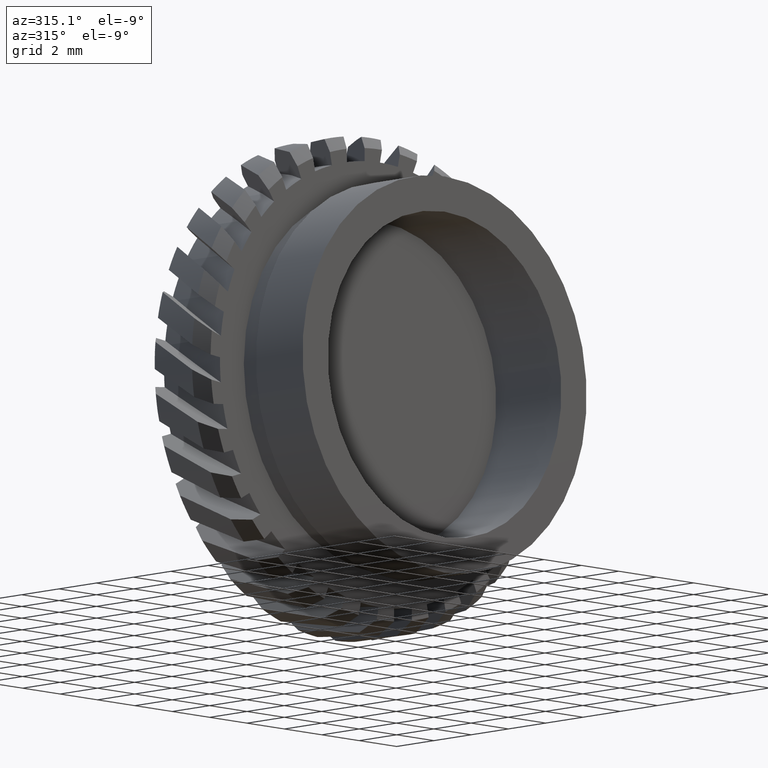
[diagram: clean part render]
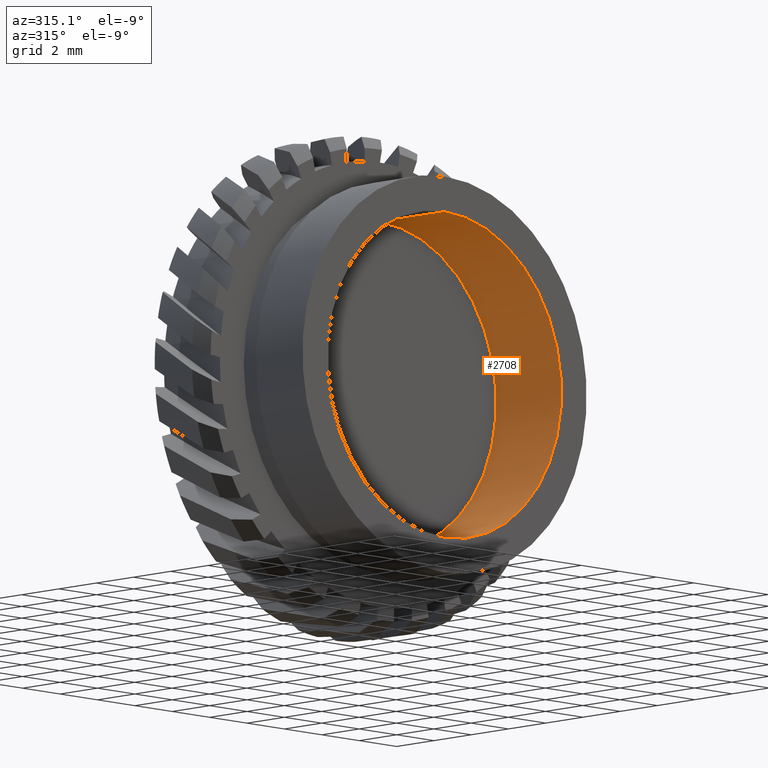
[diagram: same view with one face highlighted and labeled with its STEP entity id]
A machine part, auxiliary view. The second image highlights one B-rep face of the part: STEP entity #2708.
In plain terms, the highlighted cylindrical surface (partial cylindrical patch) has radius 6.25 mm, axis along (-0, 1, -0).
Its self-contained STEP definition (entity closure, byte-faithful):
#140 = DIRECTION ( 'NONE',  ( -0.0000000000000000000, 1.000000000000000000, -0.0000000000000000000 ) ) ;
#325 = CARTESIAN_POINT ( 'NONE',  ( 0.0000000000000000000, 15.37125740523061900, 0.0000000000000000000 ) ) ;
#901 = VECTOR ( 'NONE', #7476, 1000.000000000000000 ) ;
#956 = FACE_OUTER_BOUND ( 'NONE', #5641, .T. ) ;
#982 = CARTESIAN_POINT ( 'NONE',  ( 0.0000000000000000000, 18.87125740523061500, 6.250000000000005300 ) ) ;
#1073 = AXIS2_PLACEMENT_3D ( 'NONE', #2399, #4253, #1817 ) ;
#1802 = CARTESIAN_POINT ( 'NONE',  ( 0.0000000000000000000, 66.62876213592232900, 6.250000000000005300 ) ) ;
#1817 = DIRECTION ( 'NONE',  ( 0.0000000000000000000, 0.0000000000000000000, 1.000000000000000000 ) ) ;
#1906 = CIRCLE ( 'NONE', #4215, 6.250000000000005300 ) ;
#1965 = ORIENTED_EDGE ( 'NONE', *, *, #3093, .F. ) ;
#2399 = CARTESIAN_POINT ( 'NONE',  ( 0.0000000000000000000, 66.62876213592232900, 0.0000000000000000000 ) ) ;
#2582 = VECTOR ( 'NONE', #2960, 1000.000000000000000 ) ;
#2708 = ADVANCED_FACE ( 'NONE', ( #956 ), #3347, .F. ) ;
#2960 = DIRECTION ( 'NONE',  ( -0.0000000000000000000, 1.000000000000000000, -0.0000000000000000000 ) ) ;
#2996 = LINE ( 'NONE', #3826, #901 ) ;
#3093 = EDGE_CURVE ( 'NONE', #3836, #3397, #1906, .T. ) ;
#3347 = CYLINDRICAL_SURFACE ( 'NONE', #1073, 6.250000000000005300 ) ;
#3397 = VERTEX_POINT ( 'NONE', #5530 ) ;
#3526 = VERTEX_POINT ( 'NONE', #5683 ) ;
#3735 = DIRECTION ( 'NONE',  ( 0.0000000000000000000, 0.0000000000000000000, 1.000000000000000000 ) ) ;
#3769 = EDGE_CURVE ( 'NONE', #3836, #5391, #4654, .T. ) ;
#3826 = CARTESIAN_POINT ( 'NONE',  ( 7.654042494670964500E-016, 66.62876213592232900, -6.250000000000005300 ) ) ;
#3836 = VERTEX_POINT ( 'NONE', #4807 ) ;
#3861 = AXIS2_PLACEMENT_3D ( 'NONE', #7429, #140, #3735 ) ;
#4215 = AXIS2_PLACEMENT_3D ( 'NONE', #325, #4557, #6352 ) ;
#4253 = DIRECTION ( 'NONE',  ( -0.0000000000000000000, 1.000000000000000000, -0.0000000000000000000 ) ) ;
#4393 = EDGE_CURVE ( 'NONE', #5391, #3526, #6437, .T. ) ;
#4557 = DIRECTION ( 'NONE',  ( -0.0000000000000000000, 1.000000000000000000, -0.0000000000000000000 ) ) ;
#4654 = LINE ( 'NONE', #1802, #2582 ) ;
#4807 = CARTESIAN_POINT ( 'NONE',  ( 0.0000000000000000000, 15.37125740523061900, 6.250000000000005300 ) ) ;
#4831 = ORIENTED_EDGE ( 'NONE', *, *, #4393, .T. ) ;
#5102 = ORIENTED_EDGE ( 'NONE', *, *, #3769, .T. ) ;
#5391 = VERTEX_POINT ( 'NONE', #982 ) ;
#5530 = CARTESIAN_POINT ( 'NONE',  ( 7.654042494670964500E-016, 15.37125740523061900, -6.250000000000005300 ) ) ;
#5641 = EDGE_LOOP ( 'NONE', ( #7021, #1965, #5102, #4831 ) ) ;
#5683 = CARTESIAN_POINT ( 'NONE',  ( 7.654042494670964500E-016, 18.87125740523061500, -6.250000000000005300 ) ) ;
#6346 = EDGE_CURVE ( 'NONE', #3397, #3526, #2996, .T. ) ;
#6352 = DIRECTION ( 'NONE',  ( 0.0000000000000000000, 0.0000000000000000000, 1.000000000000000000 ) ) ;
#6437 = CIRCLE ( 'NONE', #3861, 6.250000000000005300 ) ;
#7021 = ORIENTED_EDGE ( 'NONE', *, *, #6346, .F. ) ;
#7429 = CARTESIAN_POINT ( 'NONE',  ( 0.0000000000000000000, 18.87125740523061500, 0.0000000000000000000 ) ) ;
#7476 = DIRECTION ( 'NONE',  ( -0.0000000000000000000, 1.000000000000000000, -0.0000000000000000000 ) ) ;